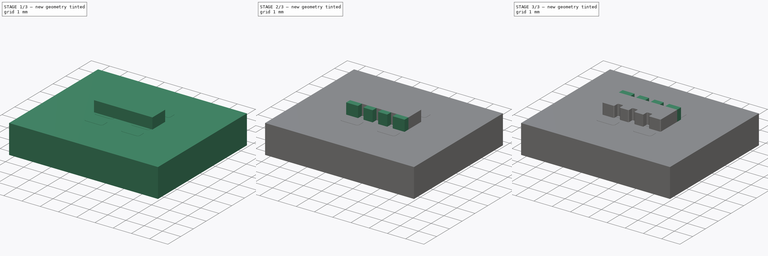
[diagram: build sequence overview — one tinted view per stage of 3, left to right]
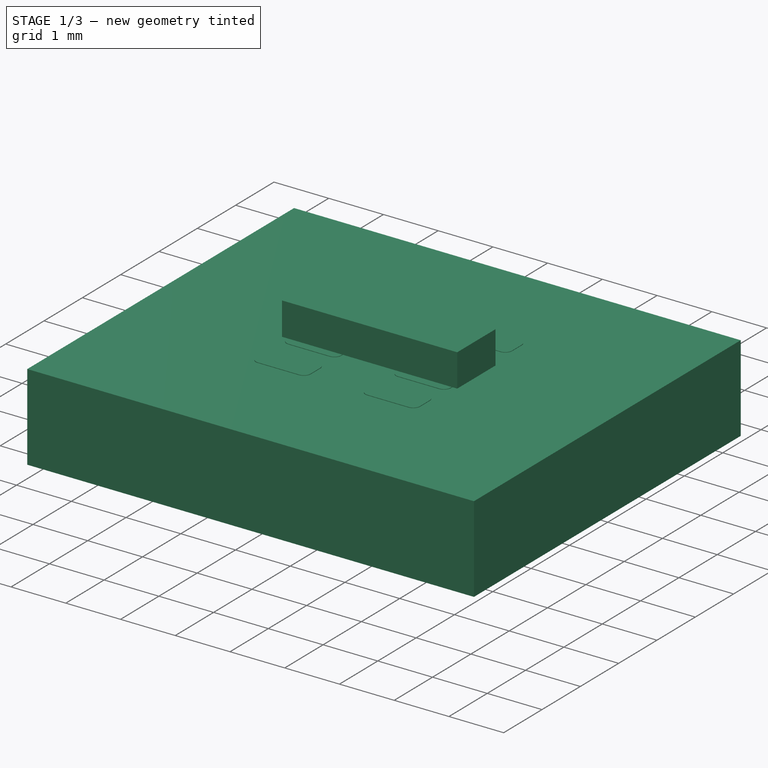
[diagram: stage 1 of 3 — iso view after this stage's code; geometry added in this stage tinted green]
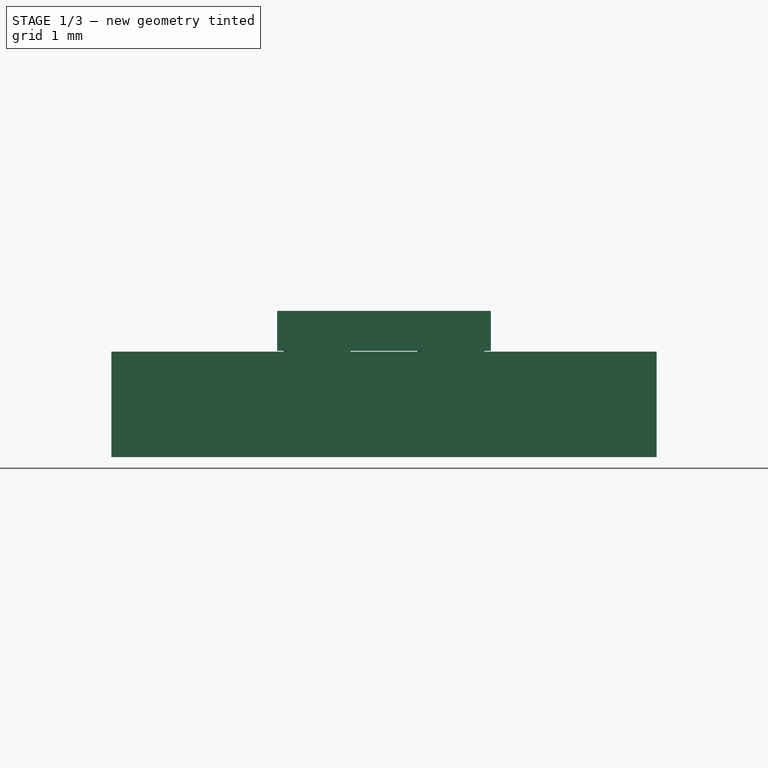
[diagram: stage 1 of 3 — front view after this stage's code; geometry added in this stage tinted green]
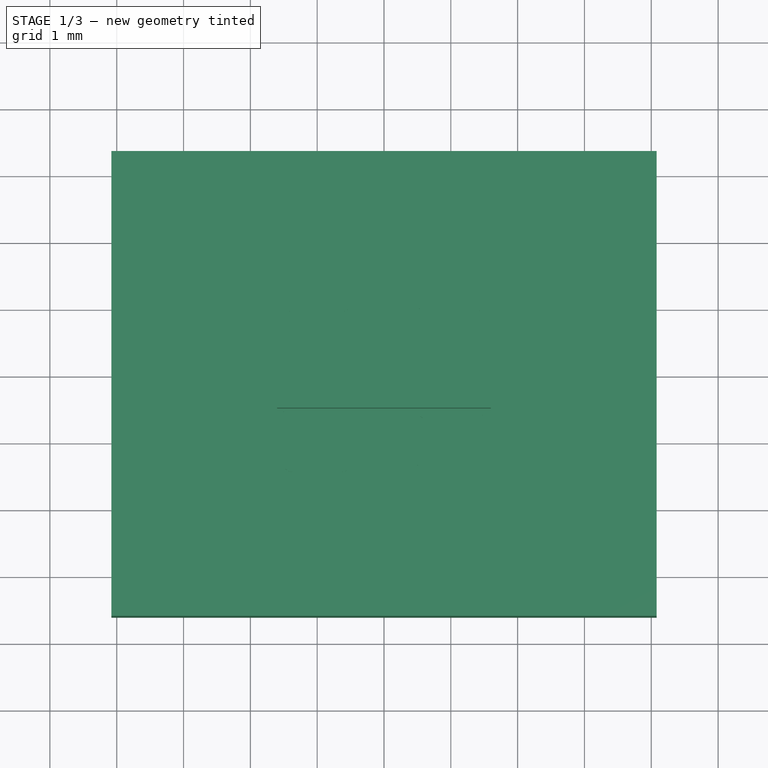
[diagram: stage 1 of 3 — top view after this stage's code; geometry added in this stage tinted green]
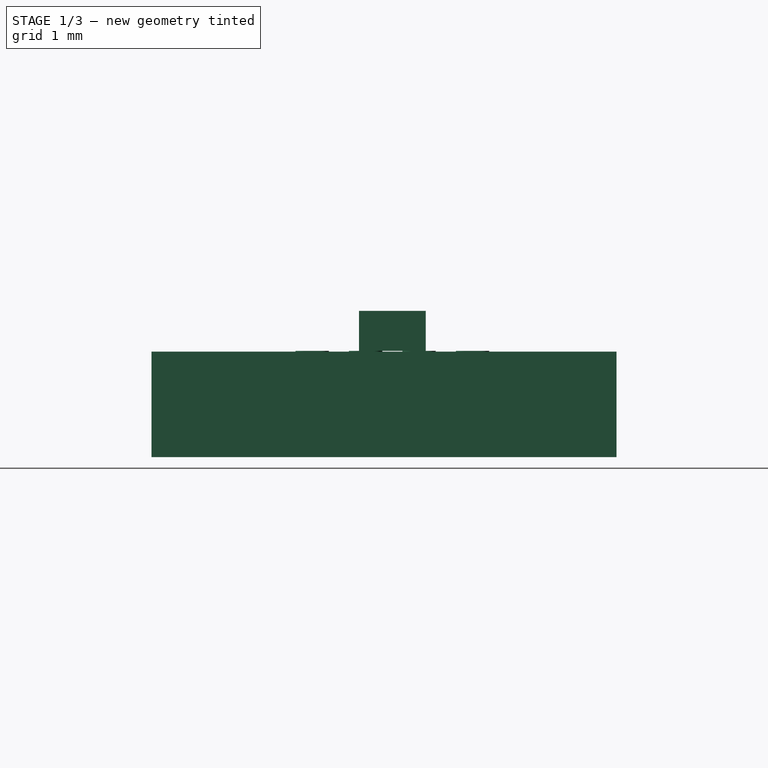
[diagram: stage 1 of 3 — right view after this stage's code; geometry added in this stage tinted green]
FCSTD DOCUMENT  (FreeCAD 0.19R24291 (Git))
Label: RES-CA-1206-BCN16-4_ksu
License: All rights reserved
LicenseURL: http://en.wikipedia.org/wiki/All_rights_reserved
objects: Part::FeaturePython×4, Sketcher::SketchObject×3, PartDesign::Pad×2, App::MeasureDistance×2, PartDesign::Mirrored×2, Spreadsheet::Sheet×1, PartDesign::Plane×1, PartDesign::Pocket×1, PartDesign::Fillet×1, PartDesign::Body×1, App::DocumentObjectGroup×1, Part::Feature×1
note: 20 computed .brp shape members not serialized (recipe doc carries the construction recipe); baked Part::Feature solids carry a one-line shape summary decoded from their .brp

FEATURE [Sketcher::SketchObject] Sketch
  FullyConstrained = true
  MapMode = 5
  Support = -> [XY_Plane]
  expr: .Constraints.W2 = Spreadsheet.main_body_width
  expr: .Constraints.L = Spreadsheet.dim_length
  sketch-geometry (4):
    g0: LineSegment StartX=-1.6 StartY=0.5 StartZ=0 EndX=1.6 EndY=0.5 EndZ=0
    g1: LineSegment StartX=1.6 StartY=0.5 StartZ=0 EndX=1.6 EndY=-0.5 EndZ=0
    g2: LineSegment StartX=1.6 StartY=-0.5 StartZ=0 EndX=-1.6 EndY=-0.5 EndZ=0
    g3: LineSegment StartX=-1.6 StartY=-0.5 StartZ=0 EndX=-1.6 EndY=0.5 EndZ=0
  constraints (10):
    c: Coincident(g0,g1)
    c: Coincident(g1,g2)
    c: Coincident(g2,g3)
    c: Coincident(g3,g0)
    c: DistanceX(g0,g0) = 3.2  'L'
    c: Symmetric(g0,g2,g-1)
    c: Equal(g3,g1)
    c: Symmetric(g0,g0,g-2)
    c: Equal(g0,g2)
    c: DistanceY(g1,g1) = 1  'W2'
FEATURE [PartDesign::Pad] Pad
  Direction = (1,1,1)
  Length = 0.6
  Length2 = 100
  Profile = -> Sketch
  Type = 0
  expr: Length = Spreadsheet.dim_thickness
FEATURE [PartDesign::Body] Body
  Group = -> [Sketch,Pad,DatumPlane,Sketch001,Pad001,Sketch002,Pocket,Fillet,Mirrored,Mirrored001]
  Origin = -> Origin
FEATURE [Part::FeaturePython] FCrtYd_lines  label="FCrtYd"  # a2plus imported part (geometry in sourceFile) (typed FeaturePython)
  Placement = pos=(0,0,0) rot=(0,0,1;1.5708rad)
  fixedPosition = true
FEATURE [Part::FeaturePython] Filk_lines  label="FrontSilk"  # a2plus imported part (geometry in sourceFile) (typed FeaturePython)
  Placement = pos=(0,0,0) rot=(0,0,1;1.5708rad)
  fixedPosition = true
FEATURE [Part::FeaturePython] TopPads  # a2plus imported part (geometry in sourceFile) (typed FeaturePython)
  Placement = pos=(0,0,0) rot=(0,0,1;1.5708rad)
  fixedPosition = true
FEATURE [Part::FeaturePython] newPCB  label="Pcb"  # a2plus imported part (geometry in sourceFile) (typed FeaturePython)
  Placement = pos=(0,0,0) rot=(0,0,1;1.5708rad)
  fixedPosition = true
FEATURE [App::DocumentObjectGroup] RES_CA_1206_BCN16_4_fp
  Group = -> [FCrtYd_lines,Filk_lines,TopPads,newPCB]
FEATURE [Part::Feature] Shape001  label="RES-CA-1206-BCN16-4"
  shape: bbox 1.6 x 3.2 x 0.6 mm, 88 faces (baked)
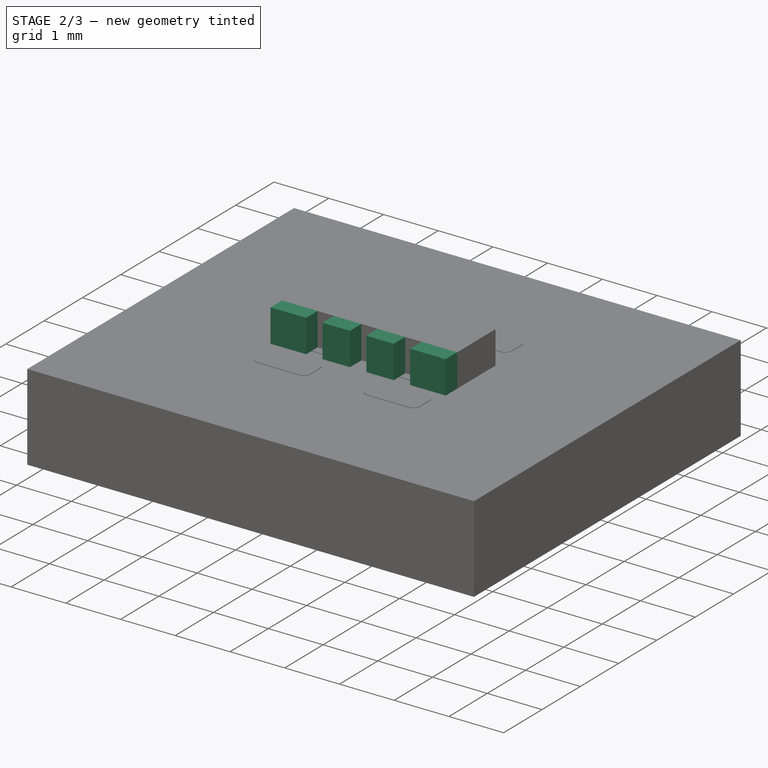
[diagram: stage 2 of 3 — iso view after this stage's code; geometry added in this stage tinted green]
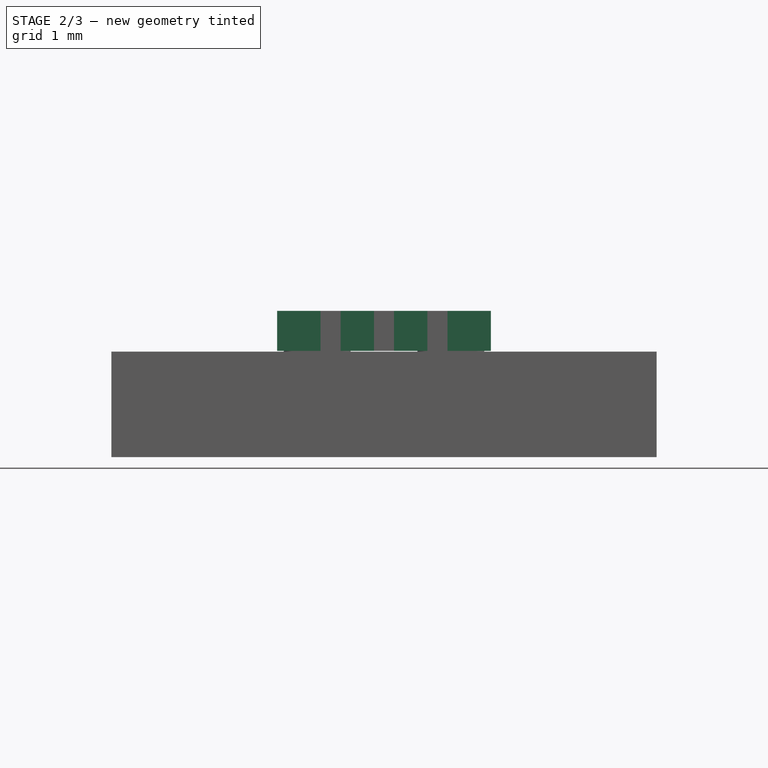
[diagram: stage 2 of 3 — front view after this stage's code; geometry added in this stage tinted green]
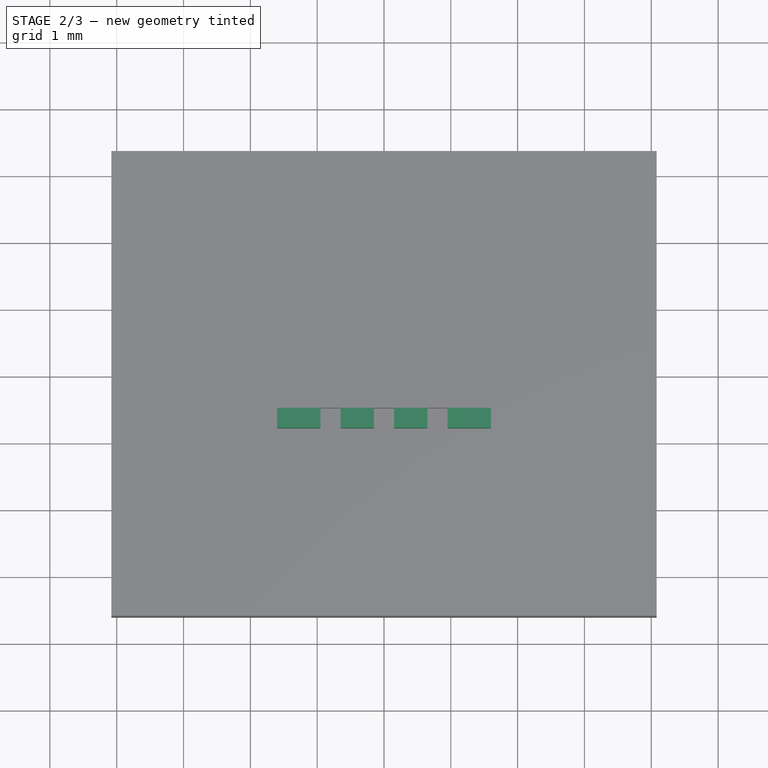
[diagram: stage 2 of 3 — top view after this stage's code; geometry added in this stage tinted green]
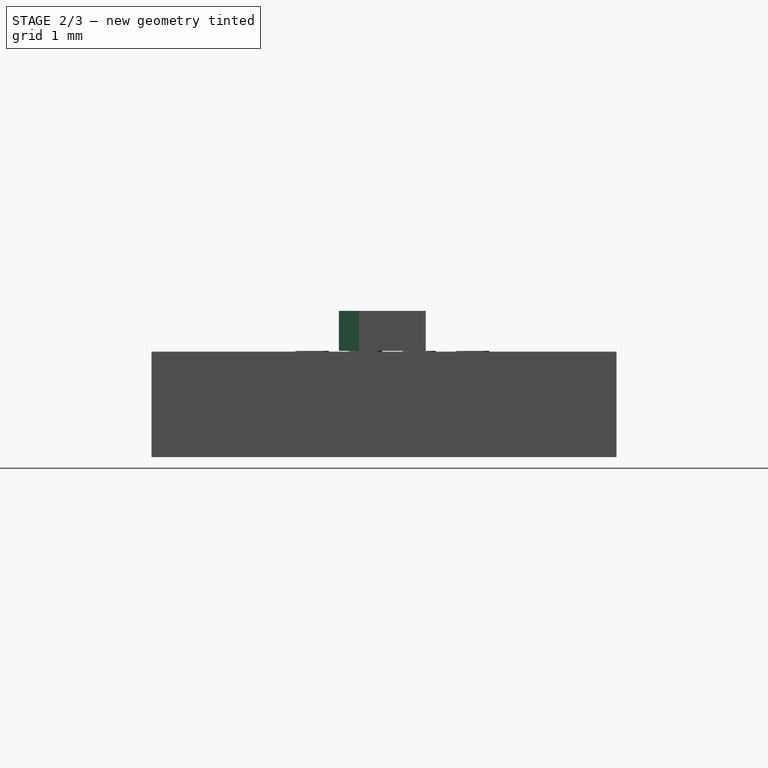
[diagram: stage 2 of 3 — right view after this stage's code; geometry added in this stage tinted green]
FEATURE [Spreadsheet::Sheet] Spreadsheet
  cells = A1=B; B1(dim_B)=0.3; C1=mm; A2=H; B2(dim_H)=0.65; C2=mm; A3=P; B3(dim_P)=0.8; C3=mm; A4=L; B4(dim_length)=3.2; C4=mm; A5=H2; B5(dim_H2)=0.5; C5=mm; A6=T; B6(dim_thickness)=0.6; C6=mm; A7=W1; B7=0.3; C7=mm; A8=W2; B8(dim_w2)=1.6; C8=mm; A10=main body width; B10(main_body_width)==dim_w2 - B1 * 2; C10=mm
FEATURE [PartDesign::Plane] DatumPlane
  AttachmentOffset = pos=(0,0,0.5) rot=(0,0,1;0rad)
  Length = 60
  MapMode = 5
  Placement = pos=(0,-0.5,1e-16) rot=(1,0,0;1.5708rad)
  ResizeMode = 0
  Support = -> [XZ_Plane]
  Width = 60
  expr: .AttachmentOffset.Base.z = Spreadsheet.main_body_width / 2
FEATURE [Sketcher::SketchObject] Sketch001
  FullyConstrained = true
  MapMode = 5
  Placement = pos=(0,-0.5,1e-16) rot=(1,0,0;1.5708rad)
  Support = -> [DatumPlane]
  expr: Constraints[10] = Spreadsheet.dim_length
  expr: Constraints[9] = Spreadsheet.dim_thickness
  sketch-geometry (4):
    g0: LineSegment StartX=-1.6 StartY=0.6 StartZ=0 EndX=1.6 EndY=0.6 EndZ=0
    g1: LineSegment StartX=1.6 StartY=0.6 StartZ=0 EndX=1.6 EndY=0 EndZ=0
    g2: LineSegment StartX=1.6 StartY=0 StartZ=0 EndX=-1.6 EndY=0 EndZ=0
    g3: LineSegment StartX=-1.6 StartY=0 StartZ=0 EndX=-1.6 EndY=0.6 EndZ=0
  constraints (11):
    c: Coincident(g0,g1)
    c: Coincident(g1,g2)
    c: Coincident(g2,g3)
    c: Coincident(g3,g0)
    c: Horizontal(g0)
    c: Vertical(g1)
    c: Vertical(g3)
    c: PointOnObject(g1,g-1)
    c: Symmetric(g2,g1,g-2)
    c: DistanceY(g3,g3) = 0.6
    c: DistanceX(g0,g0) = 3.2
FEATURE [PartDesign::Pad] Pad001
  BaseFeature = -> Pad
  Direction = (1,1,1)
  Length = 0.3
  Length2 = 100
  Profile = -> Sketch001
  Type = 0
  expr: Length = Spreadsheet.dim_B
FEATURE [Sketcher::SketchObject] Sketch002
  FullyConstrained = true
  MapMode = 5
  Support = -> [XY_Plane]
  expr: Constraints[32] = Spreadsheet.dim_P
  expr: Constraints[31] = Spreadsheet.dim_P
  expr: Constraints[9] = Spreadsheet.main_body_width / 2
  expr: Constraints[8] = Spreadsheet.dim_B
  expr: Constraints[7] = Spreadsheet.dim_P - Spreadsheet.dim_H2
  sketch-geometry (12):
    g0: LineSegment StartX=-0.15 StartY=-0.5 StartZ=0 EndX=0.15 EndY=-0.5 EndZ=0
    g1: LineSegment StartX=0.15 StartY=-0.5 StartZ=0 EndX=0.15 EndY=-0.8 EndZ=0
    g2: LineSegment StartX=0.15 StartY=-0.8 StartZ=0 EndX=-0.15 EndY=-0.8 EndZ=0
    g3: LineSegment StartX=-0.15 StartY=-0.8 StartZ=0 EndX=-0.15 EndY=-0.5 EndZ=0
    g4: LineSegment StartX=-0.95 StartY=-0.5 StartZ=0 EndX=-0.65 EndY=-0.5 EndZ=0
    g5: LineSegment StartX=-0.65 StartY=-0.5 StartZ=0 EndX=-0.65 EndY=-0.8 EndZ=0
    g6: LineSegment StartX=-0.65 StartY=-0.8 StartZ=0 EndX=-0.95 EndY=-0.8 EndZ=0
    g7: LineSegment StartX=-0.95 StartY=-0.8 StartZ=0 EndX=-0.95 EndY=-0.5 EndZ=0
    g8: LineSegment StartX=0.65 StartY=-0.5 StartZ=0 EndX=0.95 EndY=-0.5 EndZ=0
    g9: LineSegment StartX=0.95 StartY=-0.5 StartZ=0 EndX=0.95 EndY=-0.8 EndZ=0
    g10: LineSegment StartX=0.95 StartY=-0.8 StartZ=0 EndX=0.65 EndY=-0.8 EndZ=0
    g11: LineSegment StartX=0.65 StartY=-0.8 StartZ=0 EndX=0.65 EndY=-0.5 EndZ=0
  constraints (33):
    c: Coincident(g0,g1)
    c: Coincident(g1,g2)
    c: Coincident(g2,g3)
    c: Coincident(g3,g0)
    c: Horizontal(g2)
    c: Vertical(g1)
    c: Vertical(g3)
    c: DistanceX(g0,g0) = 0.3
    c: DistanceY(g1,g1) = 0.3
    c: DistanceY(g0,g-1) = 0.5
    c: Symmetric(g0,g0,g-2)
    c: Coincident(g4,g5)
    c: Coincident(g5,g6)
    c: Coincident(g6,g7)
    c: Coincident(g7,g4)
    c: Horizontal(g6)
    c: Vertical(g5)
    c: Vertical(g7)
    c: Coincident(g8,g9)
    c: Coincident(g9,g10)
    c: Coincident(g10,g11)
    c: Coincident(g11,g8)
    c: Horizontal(g10)
    c: Vertical(g9)
    c: Vertical(g11)
    c: Equal(g4,g0)
    c: Equal(g0,g8)
    c: Equal(g7,g3)
    c: Equal(g3,g11)
    c: Tangent(g4,g0) = -1.5708
    c: Tangent(g8,g0) = -1.5708
    c: DistanceX(g4,g0) = 0.8
    c: DistanceX(g0,g8) = 0.8
FEATURE [PartDesign::Pocket] Pocket
  BaseFeature = -> Pad001
  Length = 0.6
  Length2 = 100
  Profile = -> Sketch002
  Reversed = true
  Type = 0
  expr: Length = Spreadsheet.dim_thickness
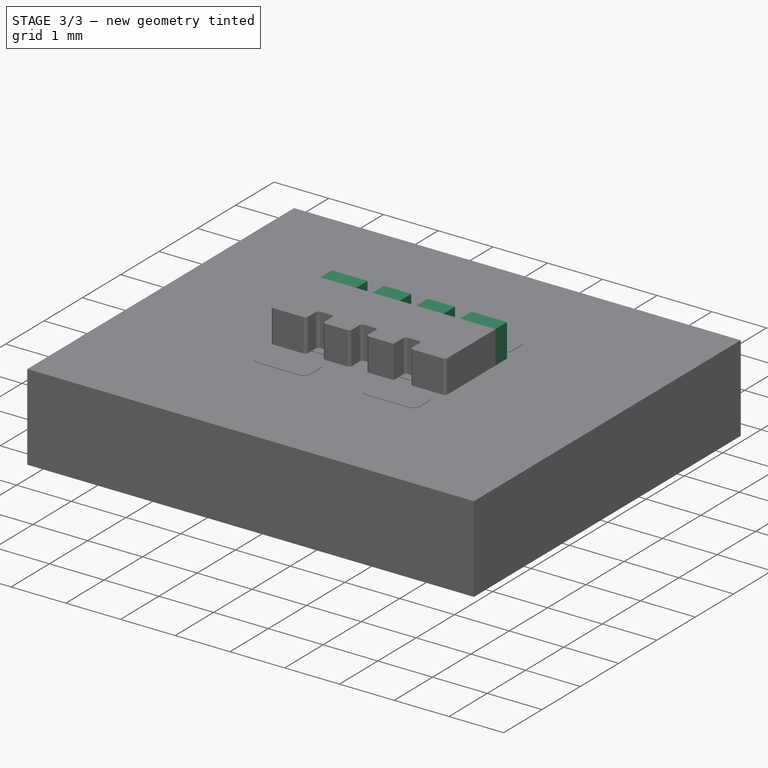
[diagram: stage 3 of 3 — iso view after this stage's code; geometry added in this stage tinted green]
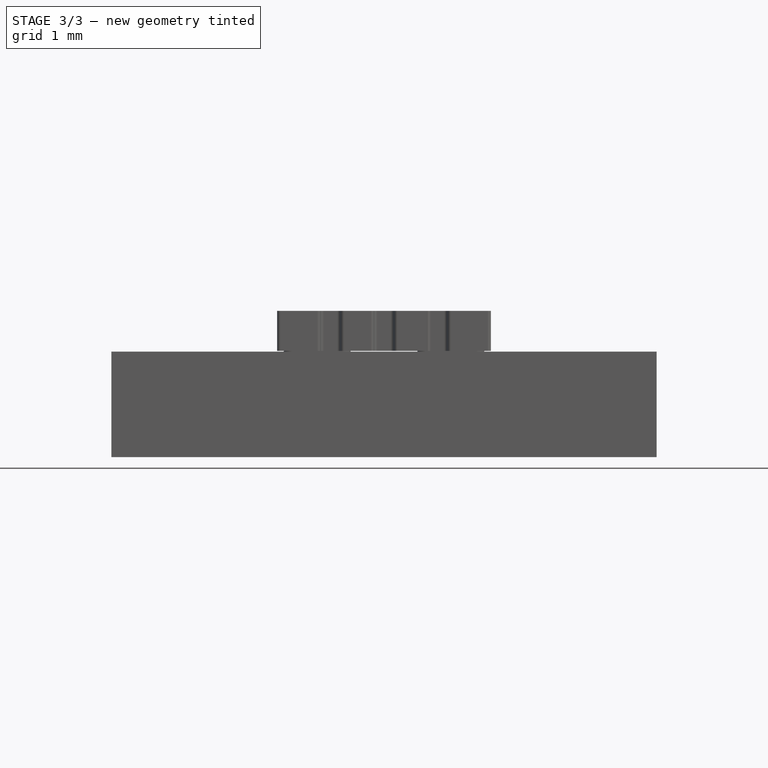
[diagram: stage 3 of 3 — front view after this stage's code; geometry added in this stage tinted green]
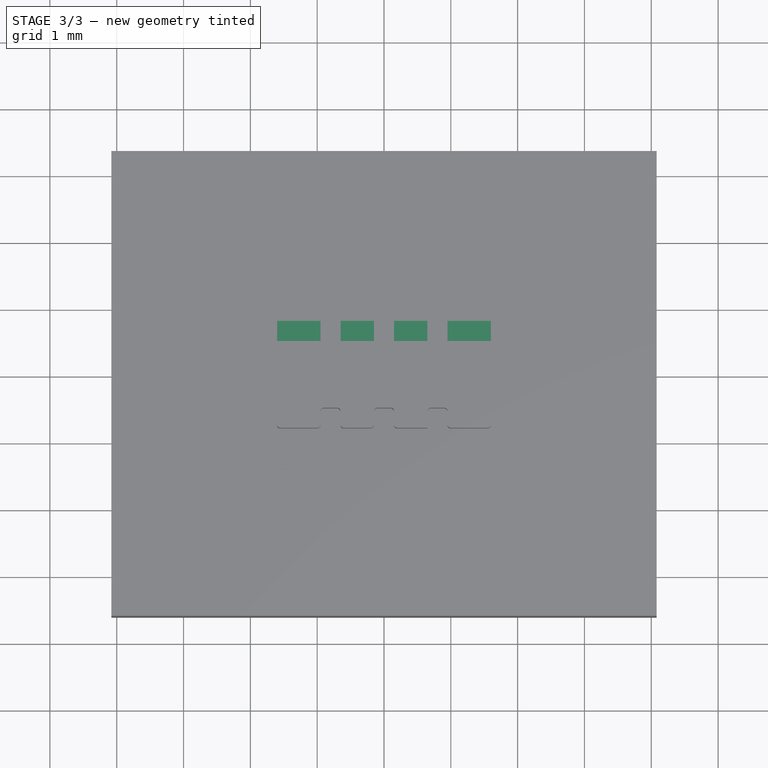
[diagram: stage 3 of 3 — top view after this stage's code; geometry added in this stage tinted green]
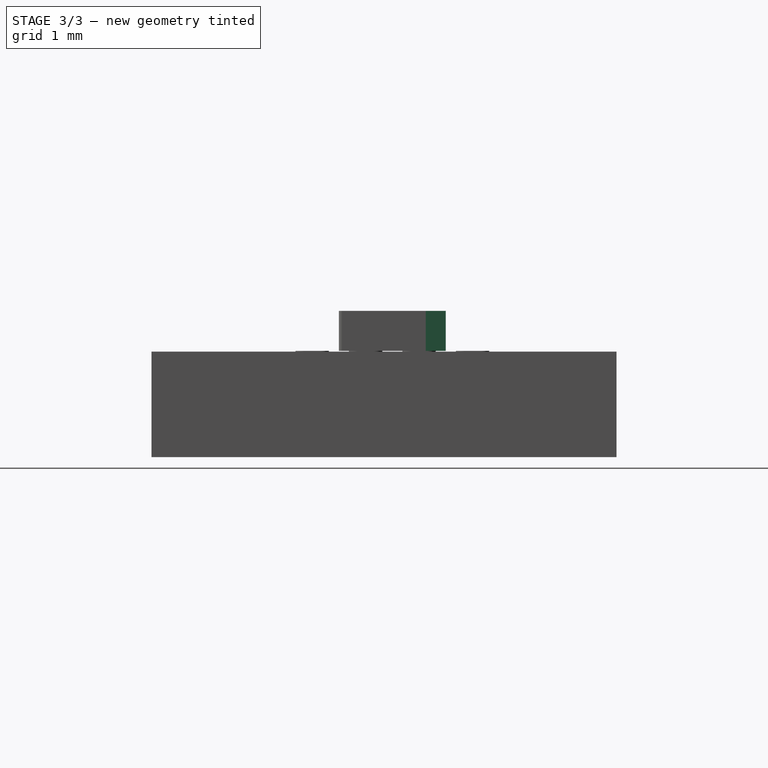
[diagram: stage 3 of 3 — right view after this stage's code; geometry added in this stage tinted green]
FEATURE [App::MeasureDistance] Distance  label="Distance: 0,50 mm"
  Distance = 0.499953
  P1 = (-0.65,-0.8,0)
  P2 = (-0.150047,-0.8,1e-16)
FEATURE [App::MeasureDistance] Distance001  label="Distance: 0,80 mm"
  Distance = 0.8
  P1 = (-0.65,-0.8,0.6)
  P2 = (0.15,-0.8,0.6)
FEATURE [PartDesign::Fillet] Fillet
  Base = -> Pocket [Edge38,Edge43,Edge33,Edge34,Edge39,Edge44,Edge57,Edge27,Edge62,Edge61,Edge60,Edge58,Edge30]
  BaseFeature = -> Pocket
  Radius = 0.05
  SupportTransform = false
FEATURE [PartDesign::Mirrored] Mirrored
  BaseFeature = -> Fillet
  MirrorPlane = -> XZ_Plane
  Originals = -> [Pad001]
FEATURE [PartDesign::Mirrored] Mirrored001
  BaseFeature = -> Mirrored
  MirrorPlane = -> XZ_Plane
  Originals = -> [Pocket]
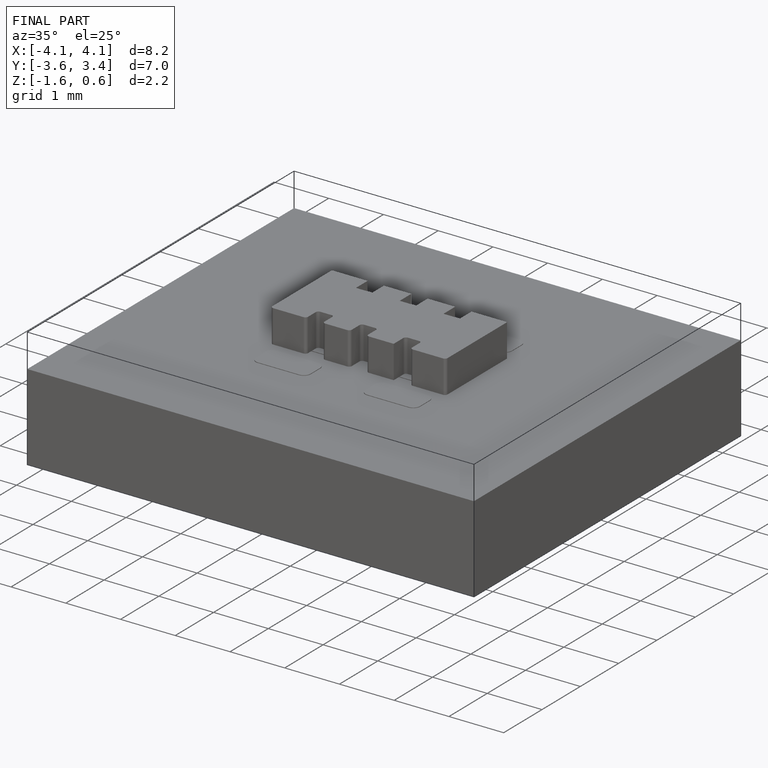
[diagram: finished part — iso view with bounding-box wireframe]
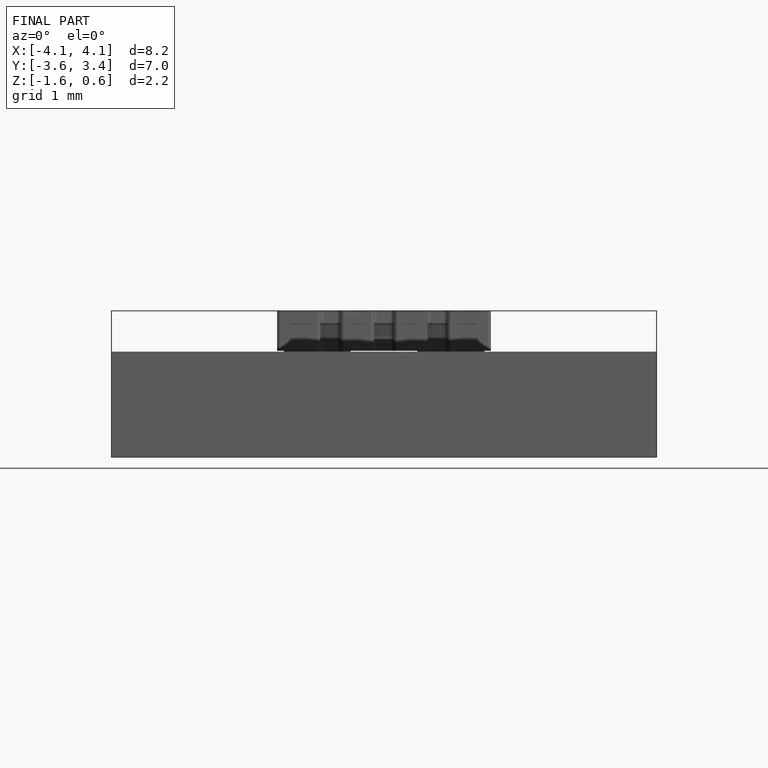
[diagram: finished part — front view with bounding-box wireframe]
